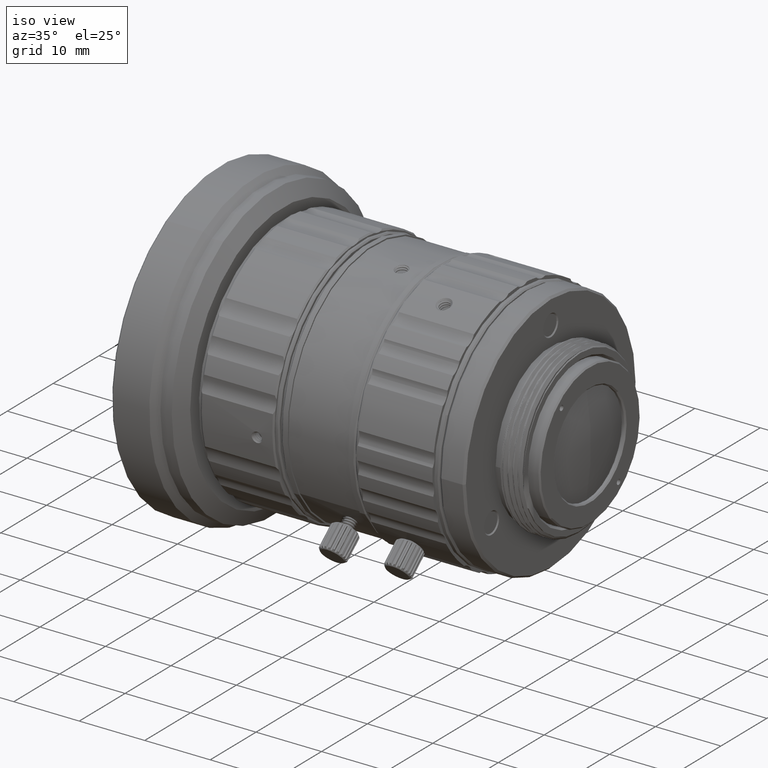
[diagram: clean part render]
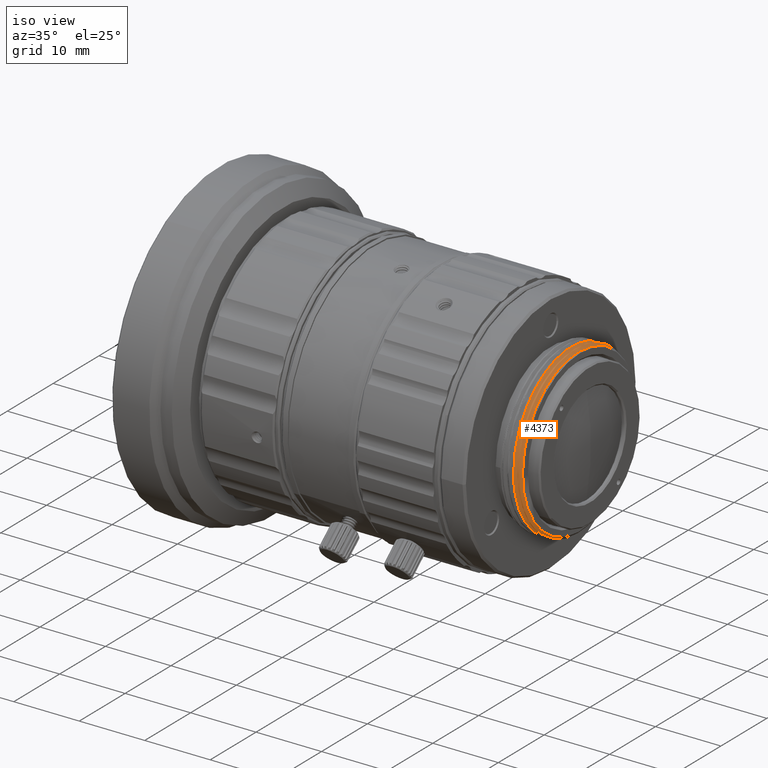
[diagram: same view with one face highlighted and labeled with its STEP entity id]
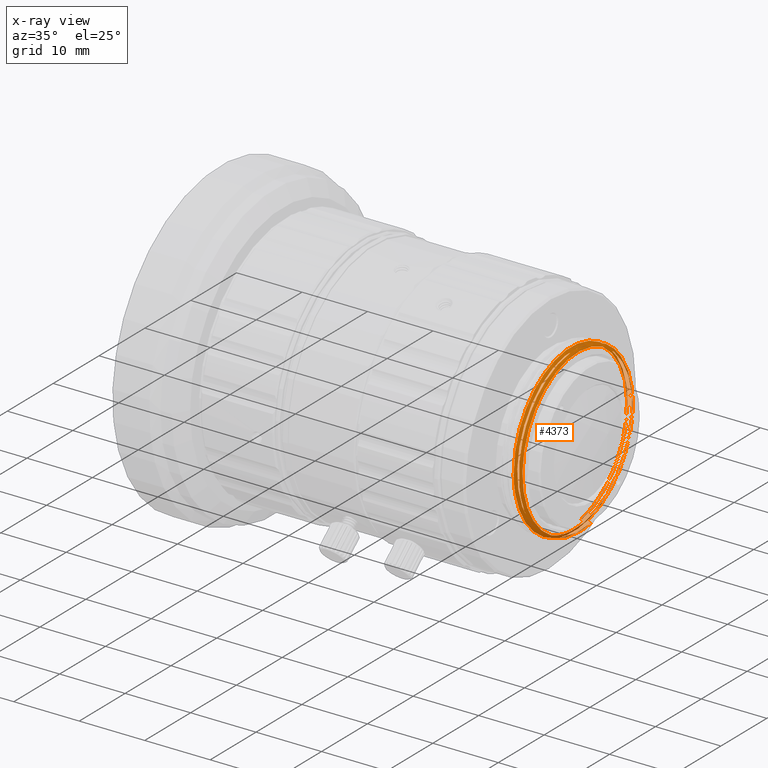
[diagram: x-ray of the same camera — body ghosted, the highlighted face saturated]
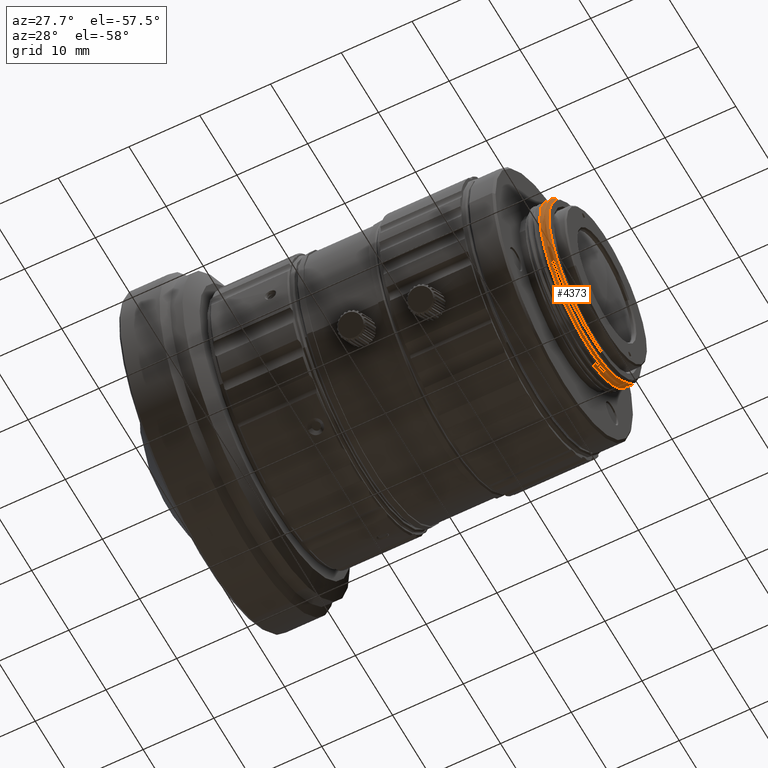
[diagram: same view with one face highlighted and labeled with its STEP entity id]
A machine part, iso view. The second image highlights one B-rep face of the part: STEP entity #4373.
The next image is the same camera in x-ray: the body ghosted, the highlighted face saturated — about 0% of this face is hidden behind the body in this view.
A second angle (auxiliary view) of the same face is appended — the face is thin or edge-on in the first view.
In plain terms, the highlighted face is a freeform B-spline surface patch.
Its self-contained STEP definition (entity closure, byte-faithful):
#77 = CARTESIAN_POINT ( 'NONE',  ( 4.357748780780413611, -9.942819503774707357, -7.312002512709993240 ) ) ;
#228 = CARTESIAN_POINT ( 'NONE',  ( 4.164210559874000239, -5.250290327171000193, 11.41109588105999961 ) ) ;
#306 = CARTESIAN_POINT ( 'NONE',  ( 3.087486403384629874, 12.28756778048323639, 1.028932772484145275 ) ) ;
#392 = CARTESIAN_POINT ( 'NONE',  ( 3.700337783225066346, 10.64625942414011917, 6.951018745466813975 ) ) ;
#395 = CARTESIAN_POINT ( 'NONE',  ( 2.712419719965954545, 7.972844528496382033, -9.987484671434939898 ) ) ;
#533 = CARTESIAN_POINT ( 'NONE',  ( 4.006870031110000063, -0.2474008441731999908, 12.74550882650999917 ) ) ;
#697 = CARTESIAN_POINT ( 'NONE',  ( 3.862072589680990209, -3.504115466494547970, 12.20698734504556882 ) ) ;
#834 = CARTESIAN_POINT ( 'NONE',  ( 4.373908453254000683, -3.023692573800000005, -12.38414836571999977 ) ) ;
#1010 = CARTESIAN_POINT ( 'NONE',  ( 3.848471805421095127, -2.176406811946624664, 12.51685869108428761 ) ) ;
#1041 = CARTESIAN_POINT ( 'NONE',  ( 4.236663422716329563, -11.99389821677489998, 4.020189755184949476 ) ) ;
#1308 = ORIENTED_EDGE ( 'NONE', *, *, #47144, .T. ) ;
#1328 = CARTESIAN_POINT ( 'NONE',  ( 3.858298740068090371, -3.138701948816923881, 12.30618395395081777 ) ) ;
#1475 = CARTESIAN_POINT ( 'NONE',  ( 2.905793112522999877, -0.3367964917532999536, -12.20629943566999920 ) ) ;
#1637 = CARTESIAN_POINT ( 'NONE',  ( 3.862552025154913249, -3.550342871836369874, 12.19364703210442258 ) ) ;
#1782 = CARTESIAN_POINT ( 'NONE',  ( 3.325188899283999966, -12.67228939305000068, -2.592817172660999869 ) ) ;
#1946 = CARTESIAN_POINT ( 'NONE',  ( 3.966014834135531686, -11.29601612129965282, 5.815821089449496384 ) ) ;
#1982 = CARTESIAN_POINT ( 'NONE',  ( 4.300746473253225233, -12.05334852088503972, -2.276754283040579807 ) ) ;
#2098 = CARTESIAN_POINT ( 'NONE',  ( 3.797057094196000016, -0.2546557193001000030, 13.11926290674999862 ) ) ;
#2408 = CARTESIAN_POINT ( 'NONE',  ( 3.797095442039999824, 9.316855329303999511, 8.972503894277000569 ) ) ;
#2712 = CARTESIAN_POINT ( 'NONE',  ( 3.063056945596999814, 11.41883479840999982, 5.667397928805000262 ) ) ;
#2956 = CARTESIAN_POINT ( 'NONE',  ( 3.193082827603669571, -12.36945334581934297, 3.324196851020748245 ) ) ;
#3022 = CARTESIAN_POINT ( 'NONE',  ( 3.482491080202999800, -1.722034698116999829, -12.81968080149000144 ) ) ;
#3036 = CARTESIAN_POINT ( 'NONE',  ( 3.510024547890279401, 7.804743673396578707, -10.15576863526565887 ) ) ;
#3274 = CARTESIAN_POINT ( 'NONE',  ( 2.910083610627485218, 10.15576871996658959, 7.804743588695649770 ) ) ;
#3276 = CARTESIAN_POINT ( 'NONE',  ( 4.500000000009589662, 2.207830656306175143, -12.06664649719343885 ) ) ;
#3834 = CARTESIAN_POINT ( 'NONE',  ( 4.310112241961884472, -11.88353109767390769, -3.173960948046849584 ) ) ;
#3840 = EDGE_CURVE ( 'NONE', #37539, #33540, #29430, .T. ) ;
#3954 = CARTESIAN_POINT ( 'NONE',  ( 3.062980249908000552, -6.714451692131000016, 11.27368827074000102 ) ) ;
#4214 = CARTESIAN_POINT ( 'NONE',  ( 3.684976169874418339, 11.38809873172064258, 5.621668837941124153 ) ) ;
#4373 = ADVANCED_FACE ( 'NONE', ( #19645 ), #40059, .F. ) ;
#4575 = CARTESIAN_POINT ( 'NONE',  ( 4.374435137418992703, -1.030230278409199451, -12.42556486532512317 ) ) ;
#5059 = CARTESIAN_POINT ( 'NONE',  ( 4.500000000000000000, 2.208352745356039204, -12.06656122945900123 ) ) ;
#5063 = CARTESIAN_POINT ( 'NONE',  ( 3.282286872346825479, -0.5295576637901497907, 12.31967540814546069 ) ) ;
#5117 = ORIENTED_EDGE ( 'NONE', *, *, #30835, .T. ) ;
#5152 = CARTESIAN_POINT ( 'NONE',  ( 4.343523298001190192, -10.70348183512233575, -6.147931991858540002 ) ) ;
#5307 = CARTESIAN_POINT ( 'NONE',  ( 4.216606272335000405, -12.68936253448999985, -1.220354827571999978 ) ) ;
#5349 = CARTESIAN_POINT ( 'NONE',  ( 2.822183519725244061, 2.779098146112053414, -12.09564756961098553 ) ) ;
#5476 = CARTESIAN_POINT ( 'NONE',  ( 3.979190538688496925, -11.82228718536179102, 4.640222678805295153 ) ) ;
#5479 = CARTESIAN_POINT ( 'NONE',  ( 2.726723323321577741, 9.048282983087119646, -9.024670353852179971 ) ) ;
#5522 = EDGE_CURVE ( 'NONE', #54236, #59425, #59654, .T. ) ;
#5618 = CARTESIAN_POINT ( 'NONE',  ( 4.269040332642000557, -11.13999893028000088, -6.197555095739000208 ) ) ;
#5778 = CARTESIAN_POINT ( 'NONE',  ( 3.790249249680971211, 3.526050415656506232, 12.20435317620591853 ) ) ;
#5923 = CARTESIAN_POINT ( 'NONE',  ( 3.744738077423000355, 3.450630765911000264, -12.07774006558999957 ) ) ;
#6029 = ORIENTED_EDGE ( 'NONE', *, *, #3840, .F. ) ;
#6100 = CARTESIAN_POINT ( 'NONE',  ( 3.744501615998864885, 7.620123575033360908, 10.15990139563222883 ) ) ;
#6136 = CARTESIAN_POINT ( 'NONE',  ( 4.268818460128039227, -12.62958548598700048, 0.7662267471209710523 ) ) ;
#6423 = CARTESIAN_POINT ( 'NONE',  ( 3.744715970005000116, 7.602349387808907011, 10.17321324773182312 ) ) ;
#6729 = CARTESIAN_POINT ( 'NONE',  ( 3.981535142580137521, -11.90315342692679934, 4.427747860077246855 ) ) ;
#6767 = CARTESIAN_POINT ( 'NONE',  ( 3.561407637075820087, -10.01438387299930177, -7.730394816992969709 ) ) ;
#6871 = CARTESIAN_POINT ( 'NONE',  ( 3.901925214808000142, -9.797594958360001272, 8.728518855161999213 ) ) ;
#6929 = VERTEX_POINT ( 'NONE', #30687 ) ;
#7182 = EDGE_CURVE ( 'NONE', #33540, #43153, #55023, .T. ) ;
#7190 = CARTESIAN_POINT ( 'NONE',  ( 2.905754764677999979, 9.109647428217000353, -8.917632603926000101 ) ) ;
#7217 = CARTESIAN_POINT ( 'NONE',  ( 4.300746473253225233, -12.05334852088503972, -2.276754283040579807 ) ) ;
#7500 = CARTESIAN_POINT ( 'NONE',  ( 3.167886718365000132, -6.618807838723999915, 11.11310047627000053 ) ) ;
#7800 = CARTESIAN_POINT ( 'NONE',  ( 3.639793261122000079, 11.53885408332000218, -5.845037707094999924 ) ) ;
#7815 = CARTESIAN_POINT ( 'NONE',  ( 3.359858121252634611, -6.395960210376972377, -11.09708760746459255 ) ) ;
#8043 = CARTESIAN_POINT ( 'NONE',  ( 2.993318674444011229, 3.324197551025655617, 12.36945315769831311 ) ) ;
#8115 = CARTESIAN_POINT ( 'NONE',  ( 2.695980175608000184, -0.3468198020266999859, -12.56956784710000008 ) ) ;
#8129 = CARTESIAN_POINT ( 'NONE',  ( 3.593450340466752380, 12.36945301779799244, -3.324198011695123078 ) ) ;
#8278 = CARTESIAN_POINT ( 'NONE',  ( 3.360207059931609397, -7.510827107862097840, 9.778056290152511210 ) ) ;
#8366 = CARTESIAN_POINT ( 'NONE',  ( 2.893436597864180282, 11.09708701869004521, 6.395961263043926870 ) ) ;
#8761 = EDGE_CURVE ( 'NONE', #6929, #34648, #35879, .T. ) ;
#9299 = CARTESIAN_POINT ( 'NONE',  ( 3.712831919737748620, 9.917763950388655658, 7.956721504750593255 ) ) ;
#9624 = CARTESIAN_POINT ( 'NONE',  ( 3.737826218503983444, 8.156171893079916302, 9.736509052043137658 ) ) ;
#9975 = CARTESIAN_POINT ( 'NONE',  ( 4.149605152337259462, -9.370912898280865377, -8.562633435399892079 ) ) ;
#10072 = CARTESIAN_POINT ( 'NONE',  ( 4.461298553764999397, 5.415473676302999806, -11.27582978337999897 ) ) ;
#10251 = CARTESIAN_POINT ( 'NONE',  ( 2.683812513254703269, 5.564009384435298244, -11.50469032645548673 ) ) ;
#10400 = CARTESIAN_POINT ( 'NONE',  ( 4.426380861404999756, -7.614604369623000579, -9.989806906873999637 ) ) ;
#10571 = CARTESIAN_POINT ( 'NONE',  ( 3.969526846211939297, -11.44846768528995540, 5.506159598518522991 ) ) ;
#10602 = CARTESIAN_POINT ( 'NONE',  ( 3.947268086013529853, 10.81562914609439829, 6.566471044939149238 ) ) ;
#10720 = CARTESIAN_POINT ( 'NONE',  ( 4.059342439261000024, 4.803504664719000061, 11.60624834697999930 ) ) ;
#10886 = CARTESIAN_POINT ( 'NONE',  ( 3.762597979190651198, 6.075387368932718246, 11.19728711756038741 ) ) ;
#11032 = CARTESIAN_POINT ( 'NONE',  ( 3.482567775891999950, -12.28505330814999930, 2.618419942720000115 ) ) ;
#11204 = CARTESIAN_POINT ( 'NONE',  ( 3.835644002899229577, -0.9034512009200815763, 12.68406474706138631 ) ) ;
#11207 = CARTESIAN_POINT ( 'NONE',  ( 2.826848549485800000, 12.69999999999999929, 1.298334250361230188E-07 ) ) ;
#11349 = CARTESIAN_POINT ( 'NONE',  ( 3.272831534666999609, 3.549269549824999981, 12.04912208982000088 ) ) ;
#11521 = CARTESIAN_POINT ( 'NONE',  ( 3.801347338027897482, 2.474143045586362444, 12.45709922214106768 ) ) ;
#11662 = CARTESIAN_POINT ( 'NONE',  ( 2.853320704372000360, 4.778379794508999190, -11.81841678247000083 ) ) ;
#11822 = CARTESIAN_POINT ( 'NONE',  ( 4.099756048907300610, -10.66584416041979999, -6.894481998263190192 ) ) ;
#11962 = CARTESIAN_POINT ( 'NONE',  ( 3.167925066210000029, 3.602083980515999873, 12.22841743906999845 ) ) ;
#12004 = CARTESIAN_POINT ( 'NONE',  ( 2.655704190592000025, 2.843852580052999901, -12.37749984863000030 ) ) ;
#12199 = CARTESIAN_POINT ( 'NONE',  ( 3.009965687207316609, 1.662425453706166012, 12.70000009407904074 ) ) ;
#12271 = CARTESIAN_POINT ( 'NONE',  ( 4.164133864184998757, -11.30333568328000027, -6.288424810558000289 ) ) ;
#12519 = CARTESIAN_POINT ( 'NONE',  ( 3.059906725497230529, -3.324198951035431282, 12.36945278145612548 ) ) ;
#12590 = CARTESIAN_POINT ( 'NONE',  ( 3.430057019896000092, -6.709453340061999782, -11.05861000448000020 ) ) ;
#12889 = CARTESIAN_POINT ( 'NONE',  ( 4.006831683266000255, -9.658033341282999729, 8.604185668160999612 ) ) ;
#12903 = CARTESIAN_POINT ( 'NONE',  ( 3.610135498982045110, 12.70000000000000639, -1.662426052631964524 ) ) ;
#13207 = CARTESIAN_POINT ( 'NONE',  ( 3.377584611745000132, -1.746918640699999914, -13.00492921800000090 ) ) ;
#13221 = CARTESIAN_POINT ( 'NONE',  ( 3.343172962737339660, -7.804742523937788334, -10.15576951862865407 ) ) ;
#13681 = CARTESIAN_POINT ( 'NONE',  ( 4.500000000000000000, 3.053405179452850060, -11.90421868474959943 ) ) ;
#13684 = CARTESIAN_POINT ( 'NONE',  ( 3.269300174416082339, 0.7365026700238510582, 12.30746815457294296 ) ) ;
#13988 = CARTESIAN_POINT ( 'NONE',  ( 3.204366684761749795, 6.644564833792093950, 10.38603109369400102 ) ) ;
#14013 = CARTESIAN_POINT ( 'NONE',  ( 4.300746473253225233, -12.05334852088503972, -2.276754283040579807 ) ) ;
#14139 = CARTESIAN_POINT ( 'NONE',  ( 2.800809948376000058, 13.10606222449000136, 0.6411773313252000506 ) ) ;
#14396 = CARTESIAN_POINT ( 'NONE',  ( 3.718410089662404605, 9.555651826680513494, 8.380219593436871506 ) ) ;
#14460 = CARTESIAN_POINT ( 'NONE',  ( 2.695941827763999932, 9.376782145410999192, -9.179136606409999288 ) ) ;
#14621 = CARTESIAN_POINT ( 'NONE',  ( 4.500000000000000000, 3.994033601424960445, -11.63259524173339976 ) ) ;
#14715 = CARTESIAN_POINT ( 'NONE',  ( 3.679088088925331679, 11.63546982429213017, 5.093609726877152077 ) ) ;
#14718 = CARTESIAN_POINT ( 'NONE',  ( 2.798241340099707486, 12.45846769481028815, -2.846521146081826270 ) ) ;
#14848 = CARTESIAN_POINT ( 'NONE',  ( 3.010661233135000003, 8.976080069620000046, -8.786880602684000507 ) ) ;
#14922 = CARTESIAN_POINT ( 'NONE',  ( 4.500000000000000000, 2.209396695068400085, -12.06638930717210023 ) ) ;
#14926 = CARTESIAN_POINT ( 'NONE',  ( 3.191379986830831683, 7.675321802214494227, 9.651243610612322499 ) ) ;
#14970 = CARTESIAN_POINT ( 'NONE',  ( 4.399413118519984955, -2.701761314541673093E-06, -12.40046648219610859 ) ) ;
#15024 = CARTESIAN_POINT ( 'NONE',  ( 3.742305501837992932, 7.800011504160981879, 10.02261928855591044 ) ) ;
#15162 = CARTESIAN_POINT ( 'NONE',  ( 3.692265669273000039, 8.115542588140998603, -9.830929298787999926 ) ) ;
#15337 = CARTESIAN_POINT ( 'NONE',  ( 3.782418388649642527, 4.260946055435616664, 11.97654029916752627 ) ) ;
#15487 = CARTESIAN_POINT ( 'NONE',  ( 4.111738151722999390, -9.518471724205999962, 8.479852481159998234 ) ) ;
#15492 = CARTESIAN_POINT ( 'NONE',  ( 2.905696857150999790, 2.746892881851999757, -11.95549532623999944 ) ) ;
#15657 = CARTESIAN_POINT ( 'NONE',  ( 3.805918184163993967, 2.038513839989705367, 12.53698663746497743 ) ) ;
#15691 = CARTESIAN_POINT ( 'NONE',  ( 3.850802973778800098, 12.36839649843889966, -2.659818469415970110 ) ) ;
#15964 = CARTESIAN_POINT ( 'NONE',  ( 3.981431180791110247, -11.89964191139823235, 4.437181854093616984 ) ) ;
#16280 = CARTESIAN_POINT ( 'NONE',  ( 3.981285219612554105, -11.89470014901318962, 4.450425224516034284 ) ) ;
#16431 = CARTESIAN_POINT ( 'NONE',  ( 4.111661456033999684, -7.954528674395000110, -10.43576286240000073 ) ) ;
#16594 = B_SPLINE_CURVE_WITH_KNOTS ( 'NONE', 3,
 ( #3276, #27179, #22394, #23648, #48780, #58349, #43357, #77, #5152, #62506 ),
 .UNSPECIFIED., .F., .F.,
 ( 4, 2, 2, 2, 4 ),
 ( 9.640176474748980880E-05, 0.2500723013235606196, 0.5000482008823737834, 0.7500241004411868362, 1.000000000000000000 ),
 .UNSPECIFIED. ) ;
#16605 = CARTESIAN_POINT ( 'NONE',  ( 4.061441100967099871, -12.40625234031894131, -3.346735110199757113 ) ) ;
#16751 = CARTESIAN_POINT ( 'NONE',  ( 2.818364664168000022, 1.358708885453999926, -12.43485434604000162 ) ) ;
#16984 = CARTESIAN_POINT ( 'NONE',  ( 3.226376867558450101, -12.69999999999999929, -7.187110037271020753E-07 ) ) ;
#17051 = CARTESIAN_POINT ( 'NONE',  ( 3.744661381734000205, 12.12938583421000160, 4.493063391131999040 ) ) ;
#17366 = CARTESIAN_POINT ( 'NONE',  ( 3.010584537445999853, 8.315820730299000374, 9.907408734672998207 ) ) ;
#17689 = CARTESIAN_POINT ( 'NONE',  ( 3.220320778671000195, -10.51373337014000064, 7.534655264526000096 ) ) ;
#17739 = EDGE_CURVE ( 'NONE', #57467, #54236, #39052, .T. ) ;
#17844 = CARTESIAN_POINT ( 'NONE',  ( 3.399167153724319768, -10.10876826433992193, 7.061432661714799330 ) ) ;
#17985 = CARTESIAN_POINT ( 'NONE',  ( 3.167848370519999790, -12.83347158467999982, 2.735309085665000417 ) ) ;
#18000 = CARTESIAN_POINT ( 'NONE',  ( 3.309802645706750646, -10.15576819358414795, -7.804744248125896178 ) ) ;
#18293 = CARTESIAN_POINT ( 'NONE',  ( 3.325150551439000068, -6.806407049451999924, -11.21841039450999844 ) ) ;
#18770 = CARTESIAN_POINT ( 'NONE',  ( 4.500000000000000000, 3.994071914930086731, -11.63258283607976118 ) ) ;
#18920 = CARTESIAN_POINT ( 'NONE',  ( 2.905678068988999829, 8.435986953321000570, 10.05057390456000022 ) ) ;
#19087 = CARTESIAN_POINT ( 'NONE',  ( 4.099756048907300610, -10.66584416041979999, -6.894481998263190192 ) ) ;
#19410 = CARTESIAN_POINT ( 'NONE',  ( 3.347220362000721483, -6.469506562606319733, 10.49771043461774944 ) ) ;
#19645 = FACE_OUTER_BOUND ( 'NONE', #23752, .T. ) ;
#19957 = CARTESIAN_POINT ( 'NONE',  ( 3.954435970803999556, 4.874982573238000327, 11.77895357274999988 ) ) ;
#20124 = CARTESIAN_POINT ( 'NONE',  ( 3.744713268783600224, 7.602573255714188072, 10.17304539901307869 ) ) ;
#20265 = CARTESIAN_POINT ( 'NONE',  ( 3.692304017117000292, -1.672266812950000014, -12.44918396847000075 ) ) ;
#20445 = CARTESIAN_POINT ( 'NONE',  ( 3.855535913400230719, -2.869678530596902810, 12.37265556031452007 ) ) ;
#20588 = CARTESIAN_POINT ( 'NONE',  ( 4.566205022222000309, 5.336070985892000351, -11.11050145295000036 ) ) ;
#20758 = CARTESIAN_POINT ( 'NONE',  ( 3.954622409163627950, -10.75320232464179604, 6.798158151825107076 ) ) ;
#21069 = CARTESIAN_POINT ( 'NONE',  ( 3.870255844538977197, -4.291993689349952845, 11.97513735687856773 ) ) ;
#21220 = CARTESIAN_POINT ( 'NONE',  ( 3.587397548659999824, -1.697150755533999966, -12.63443238498000021 ) ) ;
#21390 = CARTESIAN_POINT ( 'NONE',  ( 3.753370415862656184, 6.883714309661711717, 10.71032539234861503 ) ) ;
#21428 = CARTESIAN_POINT ( 'NONE',  ( 3.529143406594184906, -11.25104448385524059, -4.890462944899399922 ) ) ;
#21536 = CARTESIAN_POINT ( 'NONE',  ( 4.216529576645998922, 2.250395924406999981, -12.92726711405000017 ) ) ;
#21845 = CARTESIAN_POINT ( 'NONE',  ( 3.482529428047000053, -10.42217743785000117, -7.340805121519000664 ) ) ;
#21861 = CARTESIAN_POINT ( 'NONE',  ( 3.226376867558450101, -12.69999999999999929, -7.187110037271020753E-07 ) ) ;
#22145 = CARTESIAN_POINT ( 'NONE',  ( 3.272754838977999903, -12.65066549251000083, 2.696346038016999902 ) ) ;
#22393 = CARTESIAN_POINT ( 'NONE',  ( 3.143141789313756096, -10.15576960332954748, 7.804742439236886042 ) ) ;
#22394 = CARTESIAN_POINT ( 'NONE',  ( 4.471552643015017203, -0.5320361496524085299, -12.33066276671055128 ) ) ;
#22470 = CARTESIAN_POINT ( 'NONE',  ( 2.800848296220999956, 9.243214786814000661, -9.048384605167999695 ) ) ;
#22714 = CARTESIAN_POINT ( 'NONE',  ( 3.109847763787144892, -7.804744163424992109, 10.15576827828505913 ) ) ;
#22781 = CARTESIAN_POINT ( 'NONE',  ( 3.692188973583000244, 9.451486816882999520, 9.102159395399000985 ) ) ;
#23246 = CARTESIAN_POINT ( 'NONE',  ( 2.970606122006863359, 8.280515224130367002, -9.137262342693972528 ) ) ;
#23302 = CARTESIAN_POINT ( 'NONE',  ( 4.399413118519984955, -2.701761314541673093E-06, -12.40046648219610859 ) ) ;
#23389 = CARTESIAN_POINT ( 'NONE',  ( 3.430018672051999840, 3.604670714302999901, -12.61690365121000212 ) ) ;
#23562 = CARTESIAN_POINT ( 'NONE',  ( 2.918659330283602138, 3.966416684630510670, -11.67491051318917528 ) ) ;
#23626 = CARTESIAN_POINT ( 'NONE',  ( 4.465717171561481180, 2.722842822105259408, -12.10619120803878168 ) ) ;
#23648 = CARTESIAN_POINT ( 'NONE',  ( 4.443101677456367860, -3.242648380341876635, -11.91018726334310607 ) ) ;
#23652 = CARTESIAN_POINT ( 'NONE',  ( 3.669570183883752890, 11.98420087352499941, 4.216071431816530435 ) ) ;
#23752 = EDGE_LOOP ( 'NONE', ( #5117, #1308, #51426, #61808, #36758, #40199, #27698, #26842, #45339, #29751, #54330, #6029 ) ) ;
#24017 = CARTESIAN_POINT ( 'NONE',  ( 3.220282430826999942, -12.85540795737999886, -2.630284195668000091 ) ) ;
#24058 = CARTESIAN_POINT ( 'NONE',  ( 3.529143406594184906, -11.25104448385524059, -4.890462944899399922 ) ) ;
#24174 = CARTESIAN_POINT ( 'NONE',  ( 3.048526309592196171, 12.02560472768968225, -2.720657486018728477 ) ) ;
#24269 = CARTESIAN_POINT ( 'NONE',  ( 3.739444731385848986, 8.029116848650563298, 9.840953012554516377 ) ) ;
#24498 = CARTESIAN_POINT ( 'NONE',  ( 3.113459799246184989, 11.82555713013140242, 3.488749502900942545 ) ) ;
#24739 = CARTESIAN_POINT ( 'NONE',  ( 4.059304091417000215, -5.328416569966000438, 11.58089716667000069 ) ) ;
#24907 = CARTESIAN_POINT ( 'NONE',  ( 3.808777622032111232, 1.761627276211898963, 12.58200002445115295 ) ) ;
#24937 = CARTESIAN_POINT ( 'NONE',  ( 3.690027786721080005, 1.350182972750769927, -12.58083324110759982 ) ) ;
#25043 = CARTESIAN_POINT ( 'NONE',  ( 4.373946801099000581, -10.97666217727999971, -6.106685380921000217 ) ) ;
#25214 = CARTESIAN_POINT ( 'NONE',  ( 3.744625484984243968, 7.609856742204305746, 10.16759533283428496 ) ) ;
#25359 = CARTESIAN_POINT ( 'NONE',  ( 3.535001836198000014, -12.30605226437999988, -2.517883126646999425 ) ) ;
#25539 = CARTESIAN_POINT ( 'NONE',  ( 3.803735379159595809, 2.246612557796422660, 12.49971004312595824 ) ) ;
#25682 = CARTESIAN_POINT ( 'NONE',  ( 3.167963414053999838, 11.25140970164000009, 5.584301477768999433 ) ) ;
#25858 = CARTESIAN_POINT ( 'NONE',  ( 3.815883605433834092, 1.064269837326361046, 12.66028575317073823 ) ) ;
#25917 = VERTEX_POINT ( 'NONE', #7217 ) ;
#26164 = CARTESIAN_POINT ( 'NONE',  ( 3.981541891987723236, -11.90338159162941878, 4.427135486912593620 ) ) ;
#26205 = CARTESIAN_POINT ( 'NONE',  ( 3.754337861544500221, 7.158522878575899639, -10.42918534619849957 ) ) ;
#26321 = CARTESIAN_POINT ( 'NONE',  ( 3.849491154501999635, -5.484669055557000128, 11.92049973789000106 ) ) ;
#26639 = CARTESIAN_POINT ( 'NONE',  ( 4.321436045102999834, 2.218340211182999955, -12.74312495360000064 ) ) ;
#26652 = CARTESIAN_POINT ( 'NONE',  ( 3.493339389374986226, 6.395961466376837379, -11.09708688355156880 ) ) ;
#26842 = ORIENTED_EDGE ( 'NONE', *, *, #56135, .F. ) ;
#26938 = CARTESIAN_POINT ( 'NONE',  ( 4.373870105409999098, 6.934751786964999276, -10.48921052754000094 ) ) ;
#27179 = CARTESIAN_POINT ( 'NONE',  ( 4.485778125794295690, 0.8589300009496335653, -12.31356877292780894 ) ) ;
#27243 = CARTESIAN_POINT ( 'NONE',  ( 3.534925140508999863, 3.553324064838999874, -12.43718245600000216 ) ) ;
#27498 = CARTESIAN_POINT ( 'NONE',  ( 3.159788802077059255, -11.09708774260301389, 6.395960007044097395 ) ) ;
#27567 = CARTESIAN_POINT ( 'NONE',  ( 3.587320852971000118, 13.10037894492000099, -0.7483182494261000350 ) ) ;
#27581 = CARTESIAN_POINT ( 'NONE',  ( 3.293117487191457027, -11.09708652159502940, -6.395962094376695717 ) ) ;
#27698 = ORIENTED_EDGE ( 'NONE', *, *, #17739, .F. ) ;
#27899 = CARTESIAN_POINT ( 'NONE',  ( 3.560080023436163366, 11.09708724550812065, -6.395960838376875124 ) ) ;
#28102 = CARTESIAN_POINT ( 'NONE',  ( 4.499433427296100518, 3.994393301846439925, -11.63351003807530049 ) ) ;
#28282 = CARTESIAN_POINT ( 'NONE',  ( 2.655704190592000025, 2.843852580052999901, -12.37749984863000030 ) ) ;
#28347 = CARTESIAN_POINT ( 'NONE',  ( 2.996579517868628084, 9.953937608860938369, -7.276621684372757137 ) ) ;
#28979 = CARTESIAN_POINT ( 'NONE',  ( 2.931646028214397681, 5.142270136968623007, -11.20693845408005807 ) ) ;
#29069 = CARTESIAN_POINT ( 'NONE',  ( 3.743268549625002439, 7.721574198369898667, 10.08302548328694215 ) ) ;
#29421 = CARTESIAN_POINT ( 'NONE',  ( 4.124624042883733743, -10.07222723177207691, -7.767155502748267715 ) ) ;
#29430 = B_SPLINE_CURVE_WITH_KNOTS ( 'NONE', 3,
 ( #33725, #5059, #57314, #14922, #48072, #13681, #43911, #38810, #14621, #34038, #18770, #58566 ),
 .UNSPECIFIED., .F., .F.,
 ( 4, 3, 2, 3, 4 ),
 ( -0.0008638907440210670573, 0.000000000000000000, 0.7010332760236870353, 1.000000000000000000, 1.000032845695870032 ),
 .UNSPECIFIED. ) ;
#29514 = CARTESIAN_POINT ( 'NONE',  ( 4.321512740793000518, -12.50330872182999897, -1.202461756281000049 ) ) ;
#29689 = CARTESIAN_POINT ( 'NONE',  ( 3.640535396691899628, 12.66046189249410681, 1.400317370636214420 ) ) ;
#29695 = CARTESIAN_POINT ( 'NONE',  ( 2.755330530032831238, 10.82164358169155349, -6.797656223181378188 ) ) ;
#29726 = CARTESIAN_POINT ( 'NONE',  ( 3.786492898956150377, 9.624433084369448110, -8.212356476287919094 ) ) ;
#29751 = ORIENTED_EDGE ( 'NONE', *, *, #37476, .F. ) ;
#29837 = CARTESIAN_POINT ( 'NONE',  ( 4.583683042324000034, 6.734333101458999771, -10.18606575027000005 ) ) ;
#29846 = VERTEX_POINT ( 'NONE', #15492 ) ;
#30005 = CARTESIAN_POINT ( 'NONE',  ( 3.980991833700465055, -11.88472571981446713, 4.477038048240627788 ) ) ;
#30007 = CARTESIAN_POINT ( 'NONE',  ( 2.669508909899076077, 4.231123092788900308, -12.05876018964599083 ) ) ;
#30035 = CARTESIAN_POINT ( 'NONE',  ( 4.140198310482410271, -5.952649083651910367, 11.16316101093440061 ) ) ;
#30145 = CARTESIAN_POINT ( 'NONE',  ( 3.587435896504999722, -10.26936551816000076, -7.233172860470000742 ) ) ;
#30312 = CARTESIAN_POINT ( 'NONE',  ( 3.803669476225406409, 2.252895218283244017, 12.49858277062404888 ) ) ;
#30455 = CARTESIAN_POINT ( 'NONE',  ( 3.430133715585999887, -10.20987986729999975, 7.316898991446999290 ) ) ;
#30632 = CARTESIAN_POINT ( 'NONE',  ( 3.853737376069536591, -2.693654589563708956, 12.41202971403810196 ) ) ;
#30687 = CARTESIAN_POINT ( 'NONE',  ( 3.626820660538810248, 12.69999999999999929, 1.564303995725149920E-07 ) ) ;
#30782 = CARTESIAN_POINT ( 'NONE',  ( 3.849606198035999682, 11.20537394752999916, -5.676112443440999300 ) ) ;
#30835 = EDGE_CURVE ( 'NONE', #37539, #46846, #16594, .T. ) ;
#30952 = CARTESIAN_POINT ( 'NONE',  ( 3.974366669955214704, -11.64308707764637063, 5.074607817518461239 ) ) ;
#31095 = CARTESIAN_POINT ( 'NONE',  ( 4.006793335420999469, -13.06147015980999981, -1.256140970154000058 ) ) ;
#31096 = CARTESIAN_POINT ( 'NONE',  ( 3.226376867558450101, -12.69999999999999929, -7.187110037271020753E-07 ) ) ;
#31245 = CARTESIAN_POINT ( 'NONE',  ( 3.926128300935357363, -8.998842096902576415, 9.017185036938460740 ) ) ;
#31392 = CARTESIAN_POINT ( 'NONE',  ( 4.356392085308000262, 5.494876366714000149, -11.44115811382000025 ) ) ;
#31705 = CARTESIAN_POINT ( 'NONE',  ( 4.111699803878000381, -12.87541634714999894, -1.238247898862999907 ) ) ;
#32017 = CARTESIAN_POINT ( 'NONE',  ( 3.063018597751999916, 3.654898411207999853, 12.40771278831000046 ) ) ;
#32171 = CARTESIAN_POINT ( 'NONE',  ( 2.826848549485800000, 12.69999999999999929, 1.298334250361230188E-07 ) ) ;
#32175 = CARTESIAN_POINT ( 'NONE',  ( 3.464100643378428490, -12.26858891652686978, 1.235918166535373564 ) ) ;
#32320 = CARTESIAN_POINT ( 'NONE',  ( 2.905716416833000082, 12.91937322118999987, 0.6320440955082999857 ) ) ;
#32336 = CARTESIAN_POINT ( 'NONE',  ( 3.409913596798515911, -1.662425333920976467, -12.70000009407903008 ) ) ;
#33112 = CARTESIAN_POINT ( 'NONE',  ( 3.152419893038446830, 10.22577577129881554, 6.889721220974191596 ) ) ;
#33501 = CARTESIAN_POINT ( 'NONE',  ( 3.685599924688589990, 11.36059977732569770, 5.676947197864852690 ) ) ;
#33540 = VERTEX_POINT ( 'NONE', #44308 ) ;
#33725 = CARTESIAN_POINT ( 'NONE',  ( 4.500000000009589662, 2.207830656306175143, -12.06664649719343885 ) ) ;
#33730 = CARTESIAN_POINT ( 'NONE',  ( 3.126446497176944561, 11.40700727617837451, 4.683631677949040117 ) ) ;
#33820 = CARTESIAN_POINT ( 'NONE',  ( 3.728228632848338719, 8.880192632381469053, 9.093114217893928597 ) ) ;
#33835 = CARTESIAN_POINT ( 'NONE',  ( 4.329297806393469727, -11.24947286251969913, -4.889786366417770758 ) ) ;
#33863 = CARTESIAN_POINT ( 'NONE',  ( 4.299491809058414660, -4.087870238014036595, -11.85859452514128165 ) ) ;
#33878 = CARTESIAN_POINT ( 'NONE',  ( 3.115414310213999727, -10.66566012156000021, 7.643533401064999566 ) ) ;
#34038 = CARTESIAN_POINT ( 'NONE',  ( 4.500000000000000000, 3.994052758177523810, -11.63258903890658047 ) ) ;
#34131 = CARTESIAN_POINT ( 'NONE',  ( 3.681583918319867532, 11.53322490688564272, 5.318746832543276959 ) ) ;
#34134 = CARTESIAN_POINT ( 'NONE',  ( 2.655704190592000025, 2.843852580052999901, -12.37749984863000030 ) ) ;
#34262 = CARTESIAN_POINT ( 'NONE',  ( 2.923271132625000046, 1.338787241025999997, -12.25253218014999845 ) ) ;
#34586 = CARTESIAN_POINT ( 'NONE',  ( 4.269078680486000366, -11.93928964154000028, 3.902822487047000077 ) ) ;
#34648 = VERTEX_POINT ( 'NONE', #19087 ) ;
#34756 = CARTESIAN_POINT ( 'NONE',  ( 3.744678204255436071, 7.605483119959488114, 10.17086858739209987 ) ) ;
#34909 = CARTESIAN_POINT ( 'NONE',  ( 3.744699729578999658, 11.37211401543000022, -5.760575075268000056 ) ) ;
#35084 = CARTESIAN_POINT ( 'NONE',  ( 3.803453816505407037, 2.273453178618845882, 12.49487371407939307 ) ) ;
#35086 = CARTESIAN_POINT ( 'NONE',  ( 2.769634133388455766, 11.51918997587744542, -5.533928282636766838 ) ) ;
#35224 = CARTESIAN_POINT ( 'NONE',  ( 3.797172137730000063, 7.996550981096998356, -9.686786370167999038 ) ) ;
#35391 = CARTESIAN_POINT ( 'NONE',  ( 3.796926665296301628, 2.894358191750314280, 12.36688315646250302 ) ) ;
#35535 = CARTESIAN_POINT ( 'NONE',  ( 4.478814921712000796, -2.979358626358999729, -12.20256966043000091 ) ) ;
#35708 = CARTESIAN_POINT ( 'NONE',  ( 3.861355468366096222, -3.434916247683596602, 12.22674470924774504 ) ) ;
#35853 = CARTESIAN_POINT ( 'NONE',  ( 2.853282356526999575, 12.09223325987000131, -4.592089400330999993 ) ) ;
#35879 = B_SPLINE_CURVE_WITH_KNOTS ( 'NONE', 3,
 ( #37966, #44003, #29689, #58030, #62192, #23652, #47844, #38909, #14715, #34131, #49103, #57404, #4214, #62511, #33501, #52933, #392, #9299, #14396, #33820, #53258, #9624, #24269, #39228, #15024, #29069, #48475, #49732, #6100, #25214, #34756, #20124, #6423, #21390, #10886, #59298, #15337, #5778, #39532, #35391, #54203, #11521, #49410, #44631, #35084, #54826, #30312, #25539, #15657, #24907, #25858, #45268, #44954, #11204, #58973, #1010, #30632, #20445, #1328, #50053, #35708, #697, #1637, #40780, #21069, #40468, #39852, #59923, #55150, #31245, #54521, #20758, #1946, #10571, #30952, #55459, #40164, #5476, #59609, #30005, #16280, #15964, #50365, #6729, #26164, #45574, #60241, #16605, #36025, #11822 ),
 .UNSPECIFIED., .F., .F.,
 ( 4, 2, 2, 2, 2, 1, 1, 2, 2, 2, 2, 2, 2, 2, 1, 1, 1, 1, 2, 2, 2, 2, 2, 1, 1, 1, 1, 1, 2, 2, 2, 2, 2, 2, 2, 1, 1, 2, 2, 2, 2, 2, 2, 2, 2, 1, 1, 1, 1, 1, 2, 2, 2, 4 ),
 ( 0.000000000000000000, 0.06250179850838520623, 0.09375269776257781629, 0.1093781473896741074, 0.1171908722032222183, 0.1210972346099963015, 0.1230504158133833015, 0.1240270064150767598, 0.1250035970167702459, 0.1562544962709627450, 0.1875053955251553550, 0.2187562947793478818, 0.2343817444064441591, 0.2421944692199921867, 0.2461008316267661311, 0.2480540128301530478, 0.2490306034318465200, 0.2495188987326932839, 0.2497630463831164993, 0.2500071940335397147, 0.3125089925418849113, 0.3437598917960575373, 0.3593853414231438781, 0.3671980662366870485, 0.3711044286434586059, 0.3730576098468444401, 0.3740342004485373573, 0.3745224957493837881, 0.3747666433998069757, 0.3750107910502302189, 0.4062616903044046213, 0.4375125895585789682, 0.4687634888127533705, 0.4843889384398405995, 0.4922016632533842140, 0.4961080256601559380, 0.4980612068635418832, 0.4990377974652349113, 0.5000143880669277729, 0.5312652873211023419, 0.5625161865752770218, 0.6250179850836260487, 0.6875197835919751865, 0.7187706828461497555, 0.7343961324732370954, 0.7422088572867806544, 0.7461152196935525449, 0.7480684008969384902, 0.7490449914986314628, 0.7495332867994779491, 0.7497774344499011923, 0.7500215821003245464, 0.8750251791170051696, 1.000028776133685904 ),
 .UNSPECIFIED. ) ;
#36025 = CARTESIAN_POINT ( 'NONE',  ( 4.080813973168098130, -11.73035840740249824, -5.247368138323868614 ) ) ;
#36059 = CARTESIAN_POINT ( 'NONE',  ( 3.882958011190340120, 12.63335187688770134, 0.6453694350080330100 ) ) ;
#36161 = CARTESIAN_POINT ( 'NONE',  ( 4.216567924490999708, -7.841220572803999644, -10.28711087722999906 ) ) ;
#36285 = EDGE_CURVE ( 'NONE', #29846, #59425, #38264, .T. ) ;
#36392 = CARTESIAN_POINT ( 'NONE',  ( 3.209729840366974951, -12.70000018815802356, 1.662424734995145759 ) ) ;
#36464 = CARTESIAN_POINT ( 'NONE',  ( 3.430095367740999990, -12.48917082870999984, -2.555350149653999647 ) ) ;
#36478 = CARTESIAN_POINT ( 'NONE',  ( 3.459969072344398100, 3.324198711700081521, -12.36945282967687376 ) ) ;
#36758 = ORIENTED_EDGE ( 'NONE', *, *, #36285, .T. ) ;
#36779 = CARTESIAN_POINT ( 'NONE',  ( 3.377622959589999585, -10.57498935753999980, -7.448437382567999698 ) ) ;
#36944 = CARTESIAN_POINT ( 'NONE',  ( 3.503060737170812011, -12.07121766548149289, -2.518138215517809364 ) ) ;
#37094 = CARTESIAN_POINT ( 'NONE',  ( 3.377661307434999927, -12.46785940032999918, 2.657382990368000186 ) ) ;
#37326 = CARTESIAN_POINT ( 'NONE',  ( 3.043259712733925149, -1.662426891128194084, 12.69999990592092587 ) ) ;
#37476 = EDGE_CURVE ( 'NONE', #43153, #34648, #44256, .T. ) ;
#37539 = VERTEX_POINT ( 'NONE', #54874 ) ;
#37703 = CARTESIAN_POINT ( 'NONE',  ( 2.748375888069999995, 12.26696983077999903, -4.658446535352999796 ) ) ;
#37717 = CARTESIAN_POINT ( 'NONE',  ( 3.243062011645574394, -12.69999981184182047, -1.662427490054033674 ) ) ;
#37966 = CARTESIAN_POINT ( 'NONE',  ( 3.626820660538810248, 12.69999999999999929, 1.564303995725149920E-07 ) ) ;
#38264 = B_SPLINE_CURVE_WITH_KNOTS ( 'NONE', 3,
 ( #48967, #5349, #41277, #12004 ),
 .UNSPECIFIED., .F., .F.,
 ( 4, 4 ),
 ( -0.001348875781485505895, 1.000498951003019998 ),
 .UNSPECIFIED. ) ;
#38326 = CARTESIAN_POINT ( 'NONE',  ( 2.643507767456999780, 4.918502795439000153, -12.16498446796000010 ) ) ;
#38787 = EDGE_CURVE ( 'NONE', #25917, #42786, #45724, .T. ) ;
#38810 = CARTESIAN_POINT ( 'NONE',  ( 4.500000000000000000, 3.819665806674100050, -11.68905435347559951 ) ) ;
#38815 = CARTESIAN_POINT ( 'NONE',  ( 3.243326778554477485, 3.206957138460279300, 11.90640748466487864 ) ) ;
#38909 = CARTESIAN_POINT ( 'NONE',  ( 3.677455230164745625, 11.69946767051464853, 4.944909618987463951 ) ) ;
#39052 = B_SPLINE_CURVE_WITH_KNOTS ( 'NONE', 3,
 ( #16984, #36392, #2956, #27498, #22393, #22714, #51677, #12519, #37326, #12199, #8043, #47219, #46904, #3274, #8366, #51999, #55831, #46283 ),
 .UNSPECIFIED., .F., .F.,
 ( 4, 2, 2, 2, 2, 2, 2, 2, 4 ),
 ( 0.000000000000000000, 0.1250000000000000000, 0.2500000000000000000, 0.3749999999999999445, 0.4999999999999999445, 0.6250000000000000000, 0.7500000000000000000, 0.8750000000000000000, 1.000000000000000000 ),
 .UNSPECIFIED. ) ;
#39053 = CARTESIAN_POINT ( 'NONE',  ( 4.111776499568000176, -0.2437734066097000107, 12.55863178638999855 ) ) ;
#39139 = CARTESIAN_POINT ( 'NONE',  ( 3.321246966139092205, -4.216076977650306645, 11.58641913102570520 ) ) ;
#39228 = CARTESIAN_POINT ( 'NONE',  ( 3.741621663834255429, 7.855207911134419518, 9.979473268918875206 ) ) ;
#39358 = CARTESIAN_POINT ( 'NONE',  ( 3.849567850190999785, 11.95411239693000027, 4.428137213064999855 ) ) ;
#39532 = CARTESIAN_POINT ( 'NONE',  ( 3.792897461213721400, 3.276134547577786993, 12.27367859947560014 ) ) ;
#39562 = CARTESIAN_POINT ( 'NONE',  ( 3.593562674487289943, -7.663166127728100463, -10.06762857612149986 ) ) ;
#39676 = CARTESIAN_POINT ( 'NONE',  ( 3.902001910497999937, 9.182223841723999413, 8.842848393155000153 ) ) ;
#39852 = CARTESIAN_POINT ( 'NONE',  ( 3.890497619851660982, -6.140463737238317066, 11.13779511290574931 ) ) ;
#39888 = CARTESIAN_POINT ( 'NONE',  ( 4.172353347893698938, -8.648719502113490165, 9.234052705231860614 ) ) ;
#40000 = CARTESIAN_POINT ( 'NONE',  ( 4.531248982018000859, 2.154228784734000257, -12.37484063269999979 ) ) ;
#40059 = B_SPLINE_SURFACE_WITH_KNOTS ( 'NONE', 3, 3, ( 
 ( #29837, #20588, #40000, #35535, #10400, #25043, #29514, #34586, #54354, #228, #39053, #10720, #59754, #59445, #44455, #30782, #35224, #5923, #20265, #54661, #30145, #25359, #11032, #30455, #49873, #54970, #11349, #44776, #25682, #58493, #50197, #14848, #45098, #34262, #1475 ),
 ( #53705, #10072, #48928, #834, #49245, #5618, #5307, #44149, #15487, #24739, #533, #19957, #39676, #39358, #58797, #34909, #15162, #54025, #21220, #50808, #21845, #36464, #37094, #41237, #60688, #46653, #11962, #46347, #2712, #61322, #55596, #7190, #11662, #16751, #55903 ),
 ( #26938, #31392, #26639, #56221, #36161, #12271, #31705, #61000, #12889, #41543, #46045, #51743, #2408, #17051, #51126, #7800, #40927, #27243, #3022, #12590, #36779, #1782, #22145, #17689, #7500, #40614, #32017, #17366, #51435, #32320, #35853, #22470, #41862, #56528, #8115 ),
 ( #45411, #45721, #21536, #60070, #16431, #55295, #31095, #50507, #6871, #26321, #2098, #60386, #22781, #61629, #27567, #53319, #48227, #23389, #13207, #18293, #52684, #24017, #17985, #33878, #3954, #56833, #62876, #18920, #62570, #14139, #37703, #14460, #38326, #47904, #42178 ) ),
 .UNSPECIFIED., .F., .F., .F.,
 ( 4, 4 ),
 ( 4, 1, 1, 1, 1, 1, 1, 1, 1, 1, 1, 1, 1, 1, 1, 1, 1, 1, 1, 1, 1, 1, 1, 1, 1, 1, 1, 1, 1, 1, 1, 1, 4 ),
 ( 0.000000000000000000, 1.000000000000000000 ),
 ( 0.000000000000000000, 0.03124999999999040004, 0.06249999999998080008, 0.09374999999997120359, 0.1249999999999620026, 0.1562499999999519829, 0.1875000000000960065, 0.2187500000000859868, 0.2500000000000769940, 0.2812500000000670020, 0.3125000000000570100, 0.3437500000000480171, 0.3750000000001910139, 0.4062500000001820211, 0.4375000000001719735, 0.4687500000001629807, 0.5000000000001529887, 0.5312500000001439959, 0.5625000000001340039, 0.5937500000002779998, 0.6250000000002680078, 0.6562500000002580158, 0.6875000000002490230, 0.7187500000002390310, 0.7500000000002300382, 0.7812500000002200462, 0.8125000000003640421, 0.8437500000003540501, 0.8750000000003449463, 0.9062500000003349543, 0.9375000000003249623, 0.9687500000003159695, 1.000000000000000000 ),
 .UNSPECIFIED. ) ;
#40164 = CARTESIAN_POINT ( 'NONE',  ( 3.978114393493719980, -11.78353804618046397, 4.737426750579975199 ) ) ;
#40199 = ORIENTED_EDGE ( 'NONE', *, *, #5522, .F. ) ;
#40468 = CARTESIAN_POINT ( 'NONE',  ( 3.877193411586016047, -4.941398678773224695, 11.71940222380011676 ) ) ;
#40502 = CARTESIAN_POINT ( 'NONE',  ( 4.043733198247599248, 3.345964713290479953, 12.20207593018749925 ) ) ;
#40614 = CARTESIAN_POINT ( 'NONE',  ( 3.115452658059000068, -1.617156428371000043, 12.83333255193999989 ) ) ;
#40780 = CARTESIAN_POINT ( 'NONE',  ( 3.862807094891432147, -3.574916585384182444, 12.18647601656001100 ) ) ;
#40927 = CARTESIAN_POINT ( 'NONE',  ( 3.587359200814999927, 8.234534195184000538, -9.975072227407000724 ) ) ;
#41237 = CARTESIAN_POINT ( 'NONE',  ( 3.325227247127999775, -10.36180661871999931, 7.425777127985999648 ) ) ;
#41277 = CARTESIAN_POINT ( 'NONE',  ( 2.738694407097117089, 2.811477260874136075, -12.23657327290662167 ) ) ;
#41543 = CARTESIAN_POINT ( 'NONE',  ( 3.954397622959000547, -5.406542812760999794, 11.75069845227999998 ) ) ;
#41862 = CARTESIAN_POINT ( 'NONE',  ( 2.748414235914999892, 4.848441294974000115, -11.99170062521000091 ) ) ;
#42178 = CARTESIAN_POINT ( 'NONE',  ( 2.591073707150999716, -0.3518314571634000298, -12.75120205282000008 ) ) ;
#42358 = CARTESIAN_POINT ( 'NONE',  ( 4.319705028591952711, -11.61316752493315718, -4.052243189425646541 ) ) ;
#42492 = CARTESIAN_POINT ( 'NONE',  ( 3.626820660538810248, 12.69999999999999929, 1.564303995725149920E-07 ) ) ;
#42679 = B_SPLINE_CURVE_WITH_KNOTS ( 'NONE', 3,
 ( #47469, #42358, #3834, #14013 ),
 .UNSPECIFIED., .F., .F.,
 ( 4, 4 ),
 ( -9.470738853396311602E-16, 0.9999999550007280247 ),
 .UNSPECIFIED. ) ;
#42786 = VERTEX_POINT ( 'NONE', #24058 ) ;
#42970 = CARTESIAN_POINT ( 'NONE',  ( 2.905696857150999790, 2.746892881851999757, -11.95549532623999944 ) ) ;
#43153 = VERTEX_POINT ( 'NONE', #14970 ) ;
#43357 = CARTESIAN_POINT ( 'NONE',  ( 4.386199746338925287, -8.082500457864140841, -9.328164813332151084 ) ) ;
#43584 = CARTESIAN_POINT ( 'NONE',  ( 3.165406590969194411, 9.464842630390672085, 7.901796478194439644 ) ) ;
#43727 = CARTESIAN_POINT ( 'NONE',  ( 4.349454027965466096, -2.066684620644154258, -12.32149146180330668 ) ) ;
#43911 = CARTESIAN_POINT ( 'NONE',  ( 4.500000000000000000, 3.643999583583499735, -11.74165142204180157 ) ) ;
#43916 = CARTESIAN_POINT ( 'NONE',  ( 3.230340080623587351, 4.410365572038266180, 11.51433451695864285 ) ) ;
#44003 = CARTESIAN_POINT ( 'NONE',  ( 3.632685147016629923, 12.69999998514475514, 0.6030216246652911893 ) ) ;
#44105 = B_SPLINE_CURVE_WITH_KNOTS ( 'NONE', 3,
 ( #42492, #12903, #8129, #27899, #47300, #3036, #26652, #36478, #46667, #32336, #61015, #7815, #13221, #18000, #27581, #61945, #37717, #21861 ),
 .UNSPECIFIED., .F., .F.,
 ( 4, 2, 2, 2, 2, 2, 2, 2, 4 ),
 ( 0.000000000000000000, 0.1249999999999999167, 0.2499999999999998335, 0.3749999999999997780, 0.4999999999999997780, 0.6249999999999997780, 0.7499999999999997780, 0.8749999999999998890, 1.000000000000000000 ),
 .UNSPECIFIED. ) ;
#44149 = CARTESIAN_POINT ( 'NONE',  ( 4.164172212029000342, -12.11695064374000097, 3.960897914920000762 ) ) ;
#44256 = B_SPLINE_CURVE_WITH_KNOTS ( 'NONE', 3,
 ( #48206, #4575, #43727, #33863, #53302, #58396, #53608, #9975, #29421, #45944 ),
 .UNSPECIFIED., .F., .F.,
 ( 4, 2, 2, 2, 4 ),
 ( 0.2490895310470546409, 0.4367971885522780040, 0.6245048460575014504, 0.8122125035627248968, 0.9999201610679480101 ),
 .UNSPECIFIED. ) ;
#44308 = CARTESIAN_POINT ( 'NONE',  ( 4.499433427296100518, 3.994393301846439925, -11.63351003807530049 ) ) ;
#44455 = CARTESIAN_POINT ( 'NONE',  ( 3.902040258342000190, 12.54055480103999898, -0.7163400429105000189 ) ) ;
#44631 = CARTESIAN_POINT ( 'NONE',  ( 3.803152113259628209, 2.302209916280879565, 12.48963587787814689 ) ) ;
#44776 = CARTESIAN_POINT ( 'NONE',  ( 3.220397474360000345, 8.075488284254999982, 9.621078394903999964 ) ) ;
#44954 = CARTESIAN_POINT ( 'NONE',  ( 3.830010349700136096, -0.3401233733150177962, 12.70567414013292229 ) ) ;
#44988 = CARTESIAN_POINT ( 'NONE',  ( 3.979423123424789654, 8.735602162866490161, 9.148639575849431438 ) ) ;
#45098 = CARTESIAN_POINT ( 'NONE',  ( 2.958227172828999940, 4.708318294044000041, -11.64513293971999985 ) ) ;
#45268 = CARTESIAN_POINT ( 'NONE',  ( 3.820130150967438354, 0.6436060995958329256, 12.69359458510285954 ) ) ;
#45339 = ORIENTED_EDGE ( 'NONE', *, *, #8761, .T. ) ;
#45411 = CARTESIAN_POINT ( 'NONE',  ( 4.268963636952999963, 7.034961129717999917, -10.64078291617999916 ) ) ;
#45574 = CARTESIAN_POINT ( 'NONE',  ( 4.001969389397348031, -12.59205472298089923, 2.573198472556665450 ) ) ;
#45721 = CARTESIAN_POINT ( 'NONE',  ( 4.251485616850000149, 5.574279057125000492, -11.60648644424999887 ) ) ;
#45724 = B_SPLINE_CURVE_WITH_KNOTS ( 'NONE', 3,
 ( #1982, #6136, #1041, #39888, #30035, #49443, #40502, #44988, #10602, #36059, #15691, #29726, #26205, #24937, #50402, #39562, #6767, #21428 ),
 .UNSPECIFIED., .F., .F.,
 ( 4, 2, 2, 2, 2, 2, 2, 2, 4 ),
 ( 0.000000000000000000, 0.1250000000000000000, 0.2500000000000000000, 0.3750000000000000000, 0.5000000000000000000, 0.6250000000000000000, 0.7500000000000000000, 0.8750000000000000000, 1.000000000000000000 ),
 .UNSPECIFIED. ) ;
#45944 = CARTESIAN_POINT ( 'NONE',  ( 4.099756048907300610, -10.66584416041979999, -6.894481998263190192 ) ) ;
#46045 = CARTESIAN_POINT ( 'NONE',  ( 3.901963562653000039, -0.2510282817366000230, 12.93238586662999978 ) ) ;
#46283 = CARTESIAN_POINT ( 'NONE',  ( 2.826848549485800000, 12.69999999999999929, 1.298334250361230188E-07 ) ) ;
#46347 = CARTESIAN_POINT ( 'NONE',  ( 3.115491005902999877, 8.195654507277000178, 9.764243564789000018 ) ) ;
#46653 = CARTESIAN_POINT ( 'NONE',  ( 3.220359126515999648, -1.593788009745999990, 12.64788686335000101 ) ) ;
#46667 = CARTESIAN_POINT ( 'NONE',  ( 3.443283913829104481, 1.662426771343051390, -12.69999990592092942 ) ) ;
#46846 = VERTEX_POINT ( 'NONE', #33835 ) ;
#46904 = CARTESIAN_POINT ( 'NONE',  ( 2.943377636154095089, 7.804743013966278120, 10.15576916164808452 ) ) ;
#47144 = EDGE_CURVE ( 'NONE', #46846, #25917, #42679, .T. ) ;
#47219 = CARTESIAN_POINT ( 'NONE',  ( 2.960024648917400913, 6.395960635044026787, 11.09708738064654732 ) ) ;
#47300 = CARTESIAN_POINT ( 'NONE',  ( 3.543394864920869303, 10.15576907694720532, -7.804743098667156431 ) ) ;
#47446 = CARTESIAN_POINT ( 'NONE',  ( 3.074499705453839216, 12.32791992131306635, -0.2360670351130772782 ) ) ;
#47469 = CARTESIAN_POINT ( 'NONE',  ( 4.329297806393469727, -11.24947286251969913, -4.889786366417770758 ) ) ;
#47844 = CARTESIAN_POINT ( 'NONE',  ( 3.672649736390300568, 11.87972203429451490, 4.503693496873284019 ) ) ;
#47904 = CARTESIAN_POINT ( 'NONE',  ( 2.608551727252999886, 1.398552174310999874, -12.79949867779999906 ) ) ;
#48072 = CARTESIAN_POINT ( 'NONE',  ( 4.500000000000000000, 2.632970793949209742, -11.99663323857079966 ) ) ;
#48206 = CARTESIAN_POINT ( 'NONE',  ( 4.399413118519984955, -2.701761314541673093E-06, -12.40046648219610859 ) ) ;
#48227 = CARTESIAN_POINT ( 'NONE',  ( 3.482452732358000347, 8.353525802227000696, -10.11921515602999833 ) ) ;
#48475 = CARTESIAN_POINT ( 'NONE',  ( 3.743734396213857174, 7.683444403102319242, 10.11215003484209340 ) ) ;
#48780 = CARTESIAN_POINT ( 'NONE',  ( 4.428876194676978351, -4.561213098571488267, -11.46826889658366255 ) ) ;
#48928 = CARTESIAN_POINT ( 'NONE',  ( 4.426342513560999947, 2.186284497958999928, -12.55898279314999932 ) ) ;
#48967 = CARTESIAN_POINT ( 'NONE',  ( 2.905696857150999790, 2.746892881851999757, -11.95549532623999944 ) ) ;
#49103 = CARTESIAN_POINT ( 'NONE',  ( 3.682843468330549097, 11.48054046422926611, 5.431836486091212279 ) ) ;
#49245 = CARTESIAN_POINT ( 'NONE',  ( 4.321474392947999732, -7.727912471214000156, -10.13845889205000184 ) ) ;
#49410 = CARTESIAN_POINT ( 'NONE',  ( 3.802549484517062872, 2.359636953056068798, 12.47900124070847738 ) ) ;
#49443 = CARTESIAN_POINT ( 'NONE',  ( 4.075888235659450132, 0.06109915311643299152, 12.65020706685669971 ) ) ;
#49732 = CARTESIAN_POINT ( 'NONE',  ( 3.744250448617720384, 7.640903558001287621, 10.14428747734173974 ) ) ;
#49873 = CARTESIAN_POINT ( 'NONE',  ( 3.377699655279000179, -6.427520131909000511, 10.79192488732999955 ) ) ;
#50053 = CARTESIAN_POINT ( 'NONE',  ( 3.859696408569976533, -3.274459303909791785, 12.27109518043945258 ) ) ;
#50197 = CARTESIAN_POINT ( 'NONE',  ( 3.063095293442000155, 11.74276011803999964, -4.459375130287999589 ) ) ;
#50365 = CARTESIAN_POINT ( 'NONE',  ( 3.981493578772454356, -11.90175011109717396, 4.431519652554706923 ) ) ;
#50402 = CARTESIAN_POINT ( 'NONE',  ( 3.657872749309909910, -1.964373999197840170, -12.49627902354260023 ) ) ;
#50507 = CARTESIAN_POINT ( 'NONE',  ( 3.954359275114999406, -12.47227264813000147, 4.077048770667000888 ) ) ;
#50808 = CARTESIAN_POINT ( 'NONE',  ( 3.534963488353999761, -6.612499630672999729, -10.89880961445000018 ) ) ;
#51126 = CARTESIAN_POINT ( 'NONE',  ( 3.692227321428000142, 12.91377089696000091, -0.7376588472541999453 ) ) ;
#51290 = CARTESIAN_POINT ( 'NONE',  ( 3.529143406594184906, -11.25104448385524059, -4.890462944899399922 ) ) ;
#51426 = ORIENTED_EDGE ( 'NONE', *, *, #38787, .T. ) ;
#51435 = CARTESIAN_POINT ( 'NONE',  ( 2.958150477139999790, 11.58625989519000044, 5.750494379840001002 ) ) ;
#51589 = CARTESIAN_POINT ( 'NONE',  ( 3.438127247516844509, -11.76668450862915272, 3.687471183906483763 ) ) ;
#51677 = CARTESIAN_POINT ( 'NONE',  ( 3.093200751023839512, -6.395961891043811853, 11.09708665673350758 ) ) ;
#51743 = CARTESIAN_POINT ( 'NONE',  ( 3.849529502347000420, 4.946460481757000593, 11.95165879852000046 ) ) ;
#51999 = CARTESIAN_POINT ( 'NONE',  ( 2.860142572337570410, 12.36945296957723528, 3.324198251030547446 ) ) ;
#52102 = B_SPLINE_CURVE_WITH_KNOTS ( 'NONE', 3,
 ( #51290, #61163, #36944, #56378, #32175, #51589, #61482, #17844, #56684, #8278, #19410, #39139, #58571, #5063, #13684, #38815, #43916, #13988, #14926, #43584, #33112, #33730, #24498, #306, #47446, #24174, #57621, #57317, #28347, #23246, #52846, #28979, #23562, #42970 ),
 .UNSPECIFIED., .F., .F.,
 ( 4, 2, 2, 2, 2, 2, 2, 2, 2, 2, 2, 2, 2, 2, 2, 2, 4 ),
 ( 1.291250503624319871E-07, 0.06250011766505975119, 0.1250001062050691281, 0.1875000947450785327, 0.2500000832850878818, 0.3125000718250972032, 0.3750000603651065800, 0.4375000489051158459, 0.5000000374451252227, 0.5625000259851344886, 0.6250000145251438655, 0.6875000030651533534, 0.7499999916051627302, 0.8124999801451721071, 0.8749999686851813729, 0.9374999572251907498, 0.9999999457652000157 ),
 .UNSPECIFIED. ) ;
#52684 = CARTESIAN_POINT ( 'NONE',  ( 3.272716491133000005, -10.72780127723000021, -7.556069643617000509 ) ) ;
#52846 = CARTESIAN_POINT ( 'NONE',  ( 2.957619424076033177, 7.298895017180357492, -9.936805502917714250 ) ) ;
#52933 = CARTESIAN_POINT ( 'NONE',  ( 3.693421816637043165, 11.01279932353608793, 6.368565309973314825 ) ) ;
#53258 = CARTESIAN_POINT ( 'NONE',  ( 3.732469006109615961, 8.566761487250161622, 9.382745688314987120 ) ) ;
#53302 = CARTESIAN_POINT ( 'NONE',  ( 4.274510699604888053, -5.072468751187129143, -11.49978827392871850 ) ) ;
#53319 = CARTESIAN_POINT ( 'NONE',  ( 3.534886792663999966, 11.70559415121999969, -5.929500338922000680 ) ) ;
#53538 = CARTESIAN_POINT ( 'NONE',  ( 4.432566709216999357, 1.367137517678276515, -12.36743328715313872 ) ) ;
#53608 = CARTESIAN_POINT ( 'NONE',  ( 4.199567371244310898, -7.798723487222691375, -9.952438118173580150 ) ) ;
#53705 = CARTESIAN_POINT ( 'NONE',  ( 4.478776573866999122, 6.834542444211999523, -10.33763813891000005 ) ) ;
#53879 = CARTESIAN_POINT ( 'NONE',  ( 2.812544943455334234, 12.70000000000000639, -1.423411373329008800 ) ) ;
#54025 = CARTESIAN_POINT ( 'NONE',  ( 3.639831608965999443, 3.501977415374999847, -12.25746126079999954 ) ) ;
#54203 = CARTESIAN_POINT ( 'NONE',  ( 3.798955489033454480, 2.701745742445421872, 12.41078903800010558 ) ) ;
#54236 = VERTEX_POINT ( 'NONE', #32171 ) ;
#54330 = ORIENTED_EDGE ( 'NONE', *, *, #7182, .F. ) ;
#54354 = CARTESIAN_POINT ( 'NONE',  ( 4.216644620180000302, -9.378910107128000107, 8.355519294160000499 ) ) ;
#54521 = CARTESIAN_POINT ( 'NONE',  ( 3.945885607525456695, -10.27740181638662520, 7.526561373745103367 ) ) ;
#54661 = CARTESIAN_POINT ( 'NONE',  ( 3.639869956811000229, -6.515545921283999675, -10.73900922442000017 ) ) ;
#54826 = CARTESIAN_POINT ( 'NONE',  ( 3.803583201226707899, 2.261119631239563166, 12.49710142729228046 ) ) ;
#54874 = CARTESIAN_POINT ( 'NONE',  ( 4.500000000009589662, 2.207830656306175143, -12.06664649719343885 ) ) ;
#54970 = CARTESIAN_POINT ( 'NONE',  ( 3.325265594972999672, -1.570419591122000025, 12.46244117475999857 ) ) ;
#55023 = B_SPLINE_CURVE_WITH_KNOTS ( 'NONE', 3,
 ( #28102, #23626, #53538, #23302 ),
 .UNSPECIFIED., .F., .F.,
 ( 4, 4 ),
 ( -2.513622702116560137E-06, 0.2490895310470546409 ),
 .UNSPECIFIED. ) ;
#55150 = CARTESIAN_POINT ( 'NONE',  ( 3.915107795983439054, -8.193585111696185308, 9.779158250222753423 ) ) ;
#55295 = CARTESIAN_POINT ( 'NONE',  ( 4.059227395726999532, -11.46667243628000143, -6.379294525376000280 ) ) ;
#55459 = CARTESIAN_POINT ( 'NONE',  ( 3.975908578807751059, -11.70227652104772176, 4.936222406264351825 ) ) ;
#55596 = CARTESIAN_POINT ( 'NONE',  ( 2.958188824984000043, 11.91749668896000003, -4.525732265310000280 ) ) ;
#55831 = CARTESIAN_POINT ( 'NONE',  ( 2.843495559574264586, 12.70000000000000284, 1.662426172417183157 ) ) ;
#55903 = CARTESIAN_POINT ( 'NONE',  ( 2.800886644064999764, -0.3418081468899999975, -12.38793364138999920 ) ) ;
#56135 = EDGE_CURVE ( 'NONE', #6929, #57467, #44105, .T. ) ;
#56221 = CARTESIAN_POINT ( 'NONE',  ( 4.269001984796999771, -3.068026521241999927, -12.56572707100999864 ) ) ;
#56378 = CARTESIAN_POINT ( 'NONE',  ( 3.477087341309198720, -12.32959224374444140, -0.02880997101162502752 ) ) ;
#56528 = CARTESIAN_POINT ( 'NONE',  ( 2.713458195709999909, 1.378630529883000166, -12.61717651192000034 ) ) ;
#56684 = CARTESIAN_POINT ( 'NONE',  ( 3.386180455793415423, -9.330955079624498438, 8.059932972661078665 ) ) ;
#56833 = CARTESIAN_POINT ( 'NONE',  ( 3.010546189600999956, -1.640524846995000230, 13.01877824054000143 ) ) ;
#57314 = CARTESIAN_POINT ( 'NONE',  ( 4.500000000000000000, 2.208874720212219867, -12.06647526831554984 ) ) ;
#57317 = CARTESIAN_POINT ( 'NONE',  ( 3.009566215799551969, 10.64750575931359222, -6.217244794003365271 ) ) ;
#57404 = CARTESIAN_POINT ( 'NONE',  ( 3.684333305141485493, 11.41625970603227458, 5.564601708612204156 ) ) ;
#57467 = VERTEX_POINT ( 'NONE', #31096 ) ;
#57621 = CARTESIAN_POINT ( 'NONE',  ( 3.035539611661340675, 11.68481253383410667, -3.939822674013286008 ) ) ;
#58030 = CARTESIAN_POINT ( 'NONE',  ( 3.655289411438745528, 12.38549007305229388, 2.851863301951621299 ) ) ;
#58349 = CARTESIAN_POINT ( 'NONE',  ( 4.400425229118240189, -6.982202244797720780, -10.17815189697748401 ) ) ;
#58396 = CARTESIAN_POINT ( 'NONE',  ( 4.224548480697836617, -6.927957924891799735, -10.54668513173188771 ) ) ;
#58493 = CARTESIAN_POINT ( 'NONE',  ( 3.115529353748000219, 12.54599521457999955, 0.6137776238745999979 ) ) ;
#58566 = CARTESIAN_POINT ( 'NONE',  ( 4.499433427296100518, 3.994393301846439925, -11.63351003807530049 ) ) ;
#58571 = CARTESIAN_POINT ( 'NONE',  ( 3.308260268208331301, -3.005764151642637216, 11.95848955689707438 ) ) ;
#58797 = CARTESIAN_POINT ( 'NONE',  ( 3.797133789885000166, 12.72716284900000083, -0.7269994450824001087 ) ) ;
#58973 = CARTESIAN_POINT ( 'NONE',  ( 3.845134813446988709, -1.846050667422968194, 12.56903811383707925 ) ) ;
#59227 = EDGE_CURVE ( 'NONE', #42786, #29846, #52102, .T. ) ;
#59298 = CARTESIAN_POINT ( 'NONE',  ( 3.777349512717978364, 4.730998197904258795, 11.79818262747702029 ) ) ;
#59425 = VERTEX_POINT ( 'NONE', #28282 ) ;
#59445 = CARTESIAN_POINT ( 'NONE',  ( 3.954474318648999898, 11.77883895964000160, 4.363211034998000670 ) ) ;
#59609 = CARTESIAN_POINT ( 'NONE',  ( 3.980399207656369232, -11.86441014784590742, 4.530766535768732339 ) ) ;
#59654 = B_SPLINE_CURVE_WITH_KNOTS ( 'NONE', 3,
 ( #11207, #53879, #14718, #35086, #29695, #5479, #395, #10251, #30007, #34134 ),
 .UNSPECIFIED., .F., .F.,
 ( 4, 2, 2, 2, 4 ),
 ( 0.000000000000000000, 0.2500000000000000555, 0.5000000000000001110, 0.7500000000000000000, 1.000000000000000000 ),
 .UNSPECIFIED. ) ;
#59754 = CARTESIAN_POINT ( 'NONE',  ( 4.006908378954999961, 9.047592354143999316, 8.713192892033001513 ) ) ;
#59923 = CARTESIAN_POINT ( 'NONE',  ( 3.896864261070264845, -6.690380441362425934, 10.81233113808386648 ) ) ;
#60070 = CARTESIAN_POINT ( 'NONE',  ( 4.164095516339999747, -3.112360468683000203, -12.74730577630000106 ) ) ;
#60241 = CARTESIAN_POINT ( 'NONE',  ( 4.022018802801830439, -12.83801447460133716, 0.5638650559026492370 ) ) ;
#60386 = CARTESIAN_POINT ( 'NONE',  ( 3.744623033889999952, 5.017938390275999083, 12.12436402428000015 ) ) ;
#60688 = CARTESIAN_POINT ( 'NONE',  ( 3.272793186822000155, -6.523163985316999813, 10.95251268180000004 ) ) ;
#61000 = CARTESIAN_POINT ( 'NONE',  ( 4.059265743572000318, -12.29461164592999900, 4.018973342793000114 ) ) ;
#61015 = CARTESIAN_POINT ( 'NONE',  ( 3.393228438283222292, -3.324197311690242795, -12.36945320591905073 ) ) ;
#61163 = CARTESIAN_POINT ( 'NONE',  ( 3.516047435101677276, -11.74834162574960672, -3.742022585773851162 ) ) ;
#61322 = CARTESIAN_POINT ( 'NONE',  ( 3.010622885290999751, 12.73268421787999927, 0.6229108596915000629 ) ) ;
#61482 = CARTESIAN_POINT ( 'NONE',  ( 3.425140549586028094, -11.32520158117496756, 4.874172049684808883 ) ) ;
#61629 = CARTESIAN_POINT ( 'NONE',  ( 3.639754913277000181, 12.30465927150000027, 4.557989569200000091 ) ) ;
#61808 = ORIENTED_EDGE ( 'NONE', *, *, #59227, .T. ) ;
#61945 = CARTESIAN_POINT ( 'NONE',  ( 3.259747170160868013, -12.36945264155573554, -3.324199411704932938 ) ) ;
#62192 = CARTESIAN_POINT ( 'NONE',  ( 3.660703856393353384, 12.25716869550187837, 3.377712365248619175 ) ) ;
#62506 = CARTESIAN_POINT ( 'NONE',  ( 4.329297806393469727, -11.24947286251969913, -4.889786366417770758 ) ) ;
#62511 = CARTESIAN_POINT ( 'NONE',  ( 3.685405715972489560, 11.36918776238377937, 5.659749796203954908 ) ) ;
#62570 = CARTESIAN_POINT ( 'NONE',  ( 2.853244008683000210, 11.75368499197000105, 5.833590830875999167 ) ) ;
#62876 = CARTESIAN_POINT ( 'NONE',  ( 2.958112129295000337, 3.707712841899999834, 12.58700813755999981 ) ) ;